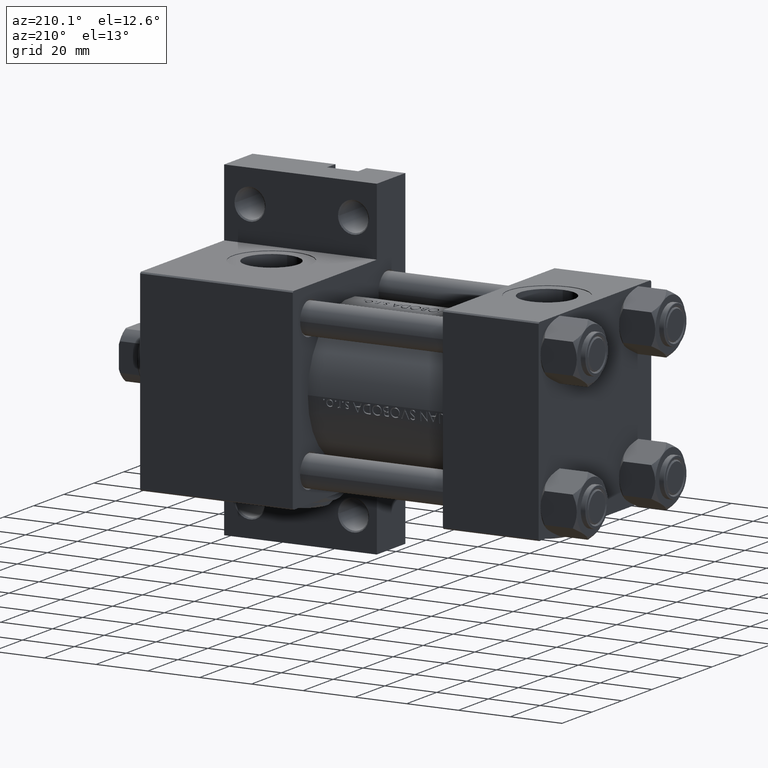
[diagram: clean part render]
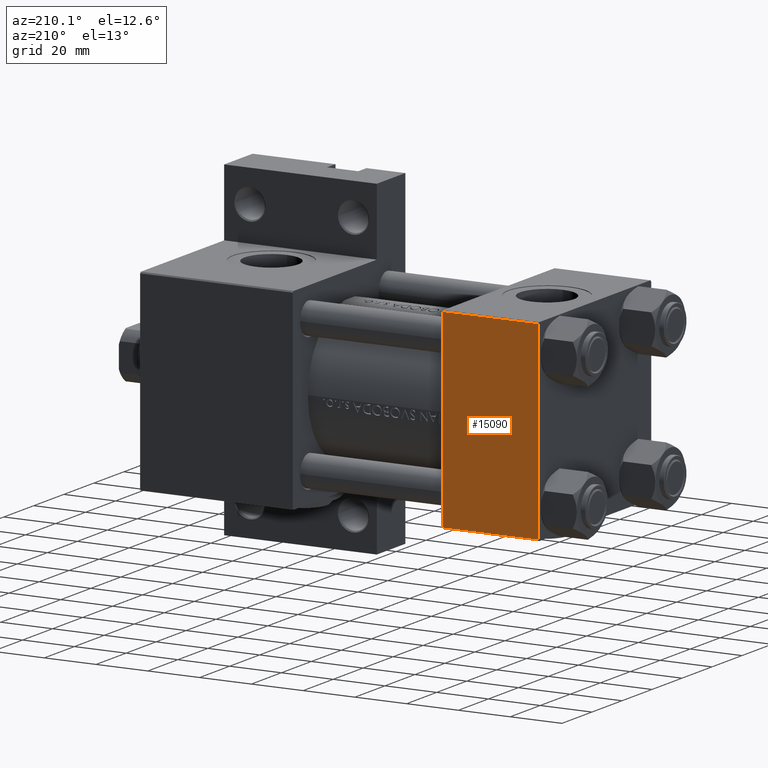
[diagram: same view with one face highlighted and labeled with its STEP entity id]
A machine part, auxiliary view. The second image highlights one B-rep face of the part: STEP entity #15090.
In plain terms, the highlighted planar face has unit normal (0, -1, -0).
Its self-contained STEP definition (entity closure, byte-faithful):
#3163 = LINE ( 'NONE', #11185, #15539 ) ;
#8949 = VECTOR ( 'NONE', #43560, 1000.000000000000000 ) ;
#8977 = CARTESIAN_POINT ( 'NONE',  ( 37.00000000000000000, -37.00000000000000711, 37.49999999999999289 ) ) ;
#10698 = DIRECTION ( 'NONE',  ( 0.000000000000000000, -1.000000000000000000, -9.251858538542971581E-17 ) ) ;
#11185 = CARTESIAN_POINT ( 'NONE',  ( 0.000000000000000000, 37.49999999999999289, 37.50000000000000000 ) ) ;
#11834 = FACE_OUTER_BOUND ( 'NONE', #36960, .T. ) ;
#12084 = DIRECTION ( 'NONE',  ( 0.000000000000000000, 9.251858538542971581E-17, -1.000000000000000000 ) ) ;
#12619 = ORIENTED_EDGE ( 'NONE', *, *, #46214, .T. ) ;
#13795 = ORIENTED_EDGE ( 'NONE', *, *, #18813, .T. ) ;
#14285 = VECTOR ( 'NONE', #16768, 1000.000000000000000 ) ;
#14914 = ORIENTED_EDGE ( 'NONE', *, *, #36443, .T. ) ;
#15090 = ADVANCED_FACE ( 'NONE', ( #11834 ), #46513, .F. ) ;
#15122 = CARTESIAN_POINT ( 'NONE',  ( 37.00000000000000000, 37.49999999999999289, 37.50000000000000000 ) ) ;
#15126 = VERTEX_POINT ( 'NONE', #45779 ) ;
#15539 = VECTOR ( 'NONE', #10698, 1000.000000000000000 ) ;
#16768 = DIRECTION ( 'NONE',  ( 1.000000000000000000, 0.000000000000000000, 0.000000000000000000 ) ) ;
#18751 = VERTEX_POINT ( 'NONE', #31487 ) ;
#18813 = EDGE_CURVE ( 'NONE', #35846, #18751, #21894, .T. ) ;
#21894 = LINE ( 'NONE', #48772, #48345 ) ;
#25416 = ORIENTED_EDGE ( 'NONE', *, *, #29179, .F. ) ;
#25440 = CARTESIAN_POINT ( 'NONE',  ( 37.00000000000000000, -37.00000000000000711, 37.49999999999999289 ) ) ;
#25675 = AXIS2_PLACEMENT_3D ( 'NONE', #15122, #12084, #27414 ) ;
#27414 = DIRECTION ( 'NONE',  ( 0.000000000000000000, 1.000000000000000000, 9.251858538542971581E-17 ) ) ;
#27751 = CARTESIAN_POINT ( 'NONE',  ( 37.00000000000000000, 37.49999999999999289, 37.50000000000000000 ) ) ;
#29179 = EDGE_CURVE ( 'NONE', #35846, #45398, #43071, .T. ) ;
#31487 = CARTESIAN_POINT ( 'NONE',  ( 0.000000000000000000, 36.99999999999999289, 37.50000000000000000 ) ) ;
#33212 = DIRECTION ( 'NONE',  ( -1.000000000000000000, 0.000000000000000000, 0.000000000000000000 ) ) ;
#33932 = CARTESIAN_POINT ( 'NONE',  ( 37.00000000000000000, 36.99999999999999289, 37.50000000000000000 ) ) ;
#35846 = VERTEX_POINT ( 'NONE', #33932 ) ;
#36091 = LINE ( 'NONE', #8977, #14285 ) ;
#36443 = EDGE_CURVE ( 'NONE', #18751, #15126, #3163, .T. ) ;
#36960 = EDGE_LOOP ( 'NONE', ( #14914, #12619, #25416, #13795 ) ) ;
#43071 = LINE ( 'NONE', #27751, #8949 ) ;
#43560 = DIRECTION ( 'NONE',  ( 0.000000000000000000, -1.000000000000000000, -9.251858538542971581E-17 ) ) ;
#45398 = VERTEX_POINT ( 'NONE', #25440 ) ;
#45779 = CARTESIAN_POINT ( 'NONE',  ( 0.000000000000000000, -37.00000000000000711, 37.49999999999999289 ) ) ;
#46214 = EDGE_CURVE ( 'NONE', #15126, #45398, #36091, .T. ) ;
#46513 = PLANE ( 'NONE',  #25675 ) ;
#48345 = VECTOR ( 'NONE', #33212, 1000.000000000000000 ) ;
#48772 = CARTESIAN_POINT ( 'NONE',  ( 0.000000000000000000, 36.99999999999999289, 37.50000000000000000 ) ) ;